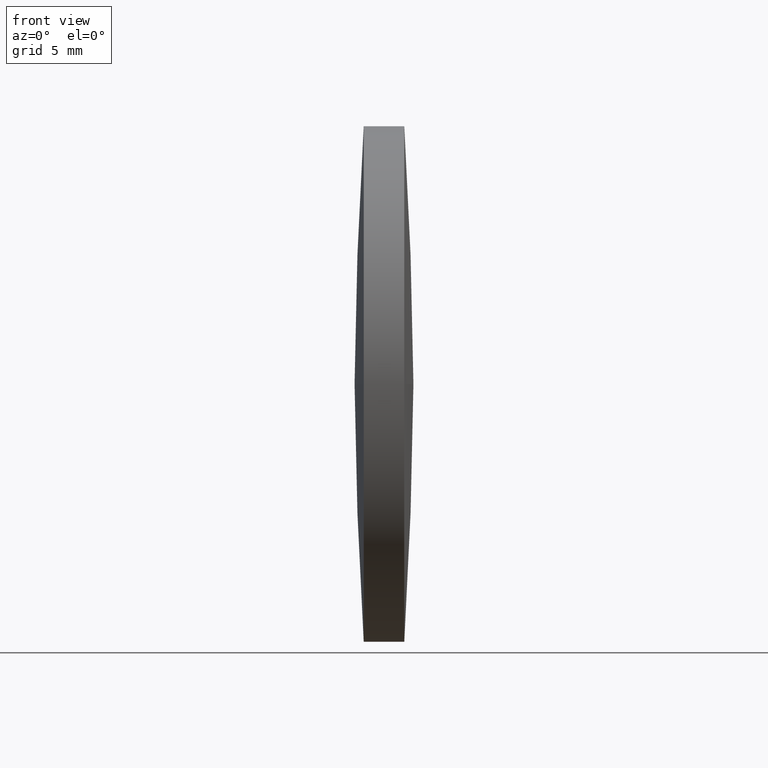
[diagram: clean part render]
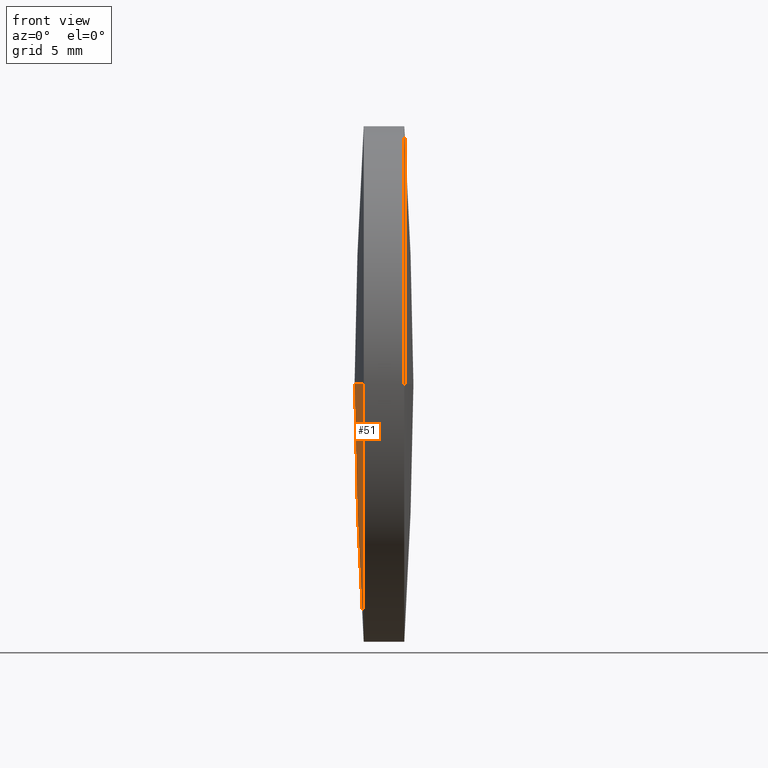
[diagram: same view with one face highlighted and labeled with its STEP entity id]
A machine part, front view. The second image highlights one B-rep face of the part: STEP entity #51.
In plain terms, the highlighted spherical surface has radius 179.315 mm.
Its self-contained STEP definition (entity closure, byte-faithful):
#7 = EDGE_CURVE ( 'NONE', #18, #333, #209, .T. ) ;
#18 = VERTEX_POINT ( 'NONE', #232 ) ;
#31 = CARTESIAN_POINT ( 'NONE',  ( 264.3228134857245100, 48.61611302318468800, 0.0000000000000000000 ) ) ;
#32 = CARTESIAN_POINT ( 'NONE',  ( 85.45852234609110100, 35.91611302318484200, -1.555301434917118900E-015 ) ) ;
#49 = DIRECTION ( 'NONE',  ( 0.0000000000000000000, 0.0000000000000000000, 1.000000000000000000 ) ) ;
#51 = ADVANCED_FACE ( 'NONE', ( #125 ), #172, .T. ) ;
#54 = CIRCLE ( 'NONE', #175, 179.3145968539190800 ) ;
#56 = CARTESIAN_POINT ( 'NONE',  ( 85.45852234609111500, 48.61611302318478100, 0.0000000000000000000 ) ) ;
#59 = VERTEX_POINT ( 'NONE', #63 ) ;
#63 = CARTESIAN_POINT ( 'NONE',  ( 85.00821663180541100, 48.61611302318470300, 0.0000000000000000000 ) ) ;
#71 = ORIENTED_EDGE ( 'NONE', *, *, #285, .T. ) ;
#92 = CARTESIAN_POINT ( 'NONE',  ( 264.3228134857245100, 48.61611302318468800, 0.0000000000000000000 ) ) ;
#104 = AXIS2_PLACEMENT_3D ( 'NONE', #56, #266, #115 ) ;
#106 = DIRECTION ( 'NONE',  ( 0.0000000000000000000, 1.224646799147353200E-016, -1.000000000000000000 ) ) ;
#115 = DIRECTION ( 'NONE',  ( 0.0000000000000000000, 0.0000000000000000000, 1.000000000000000000 ) ) ;
#125 = FACE_OUTER_BOUND ( 'NONE', #268, .T. ) ;
#129 = DIRECTION ( 'NONE',  ( -1.000000000000000000, -0.0000000000000000000, -0.0000000000000000000 ) ) ;
#133 = DIRECTION ( 'NONE',  ( 0.0000000000000000000, 1.000000000000000000, 1.224646799147353200E-016 ) ) ;
#135 = ORIENTED_EDGE ( 'NONE', *, *, #7, .T. ) ;
#141 = AXIS2_PLACEMENT_3D ( 'NONE', #92, #272, #312 ) ;
#144 = AXIS2_PLACEMENT_3D ( 'NONE', #194, #224, #220 ) ;
#154 = ORIENTED_EDGE ( 'NONE', *, *, #337, .F. ) ;
#172 = SPHERICAL_SURFACE ( 'NONE', #144, 179.3145968539190800 ) ;
#175 = AXIS2_PLACEMENT_3D ( 'NONE', #31, #106, #133 ) ;
#194 = CARTESIAN_POINT ( 'NONE',  ( 264.3228134857245100, 48.61611302318468800, 0.0000000000000000000 ) ) ;
#209 = CIRCLE ( 'NONE', #241, 12.69999999999999600 ) ;
#220 = DIRECTION ( 'NONE',  ( 0.0000000000000000000, 1.000000000000000000, 0.0000000000000000000 ) ) ;
#224 = DIRECTION ( 'NONE',  ( -0.0000000000000000000, 0.0000000000000000000, -1.000000000000000000 ) ) ;
#232 = CARTESIAN_POINT ( 'NONE',  ( 85.45852234609110100, 61.31611302318462700, 0.0000000000000000000 ) ) ;
#241 = AXIS2_PLACEMENT_3D ( 'NONE', #283, #129, #49 ) ;
#248 = EDGE_CURVE ( 'NONE', #310, #59, #54, .T. ) ;
#257 = ORIENTED_EDGE ( 'NONE', *, *, #248, .T. ) ;
#266 = DIRECTION ( 'NONE',  ( -1.000000000000000000, -0.0000000000000000000, -0.0000000000000000000 ) ) ;
#268 = EDGE_LOOP ( 'NONE', ( #135, #71, #257, #154 ) ) ;
#271 = CIRCLE ( 'NONE', #104, 12.69999999999999600 ) ;
#272 = DIRECTION ( 'NONE',  ( -0.0000000000000000000, 0.0000000000000000000, 1.000000000000000000 ) ) ;
#283 = CARTESIAN_POINT ( 'NONE',  ( 85.45852234609111500, 48.61611302318478100, 0.0000000000000000000 ) ) ;
#285 = EDGE_CURVE ( 'NONE', #333, #310, #271, .T. ) ;
#297 = CARTESIAN_POINT ( 'NONE',  ( 85.45852234609111500, 48.61611302318478100, -12.69999999999999600 ) ) ;
#310 = VERTEX_POINT ( 'NONE', #32 ) ;
#312 = DIRECTION ( 'NONE',  ( 1.000000000000000000, 0.0000000000000000000, 0.0000000000000000000 ) ) ;
#333 = VERTEX_POINT ( 'NONE', #297 ) ;
#337 = EDGE_CURVE ( 'NONE', #18, #59, #338, .T. ) ;
#338 = CIRCLE ( 'NONE', #141, 179.3145968539190800 ) ;